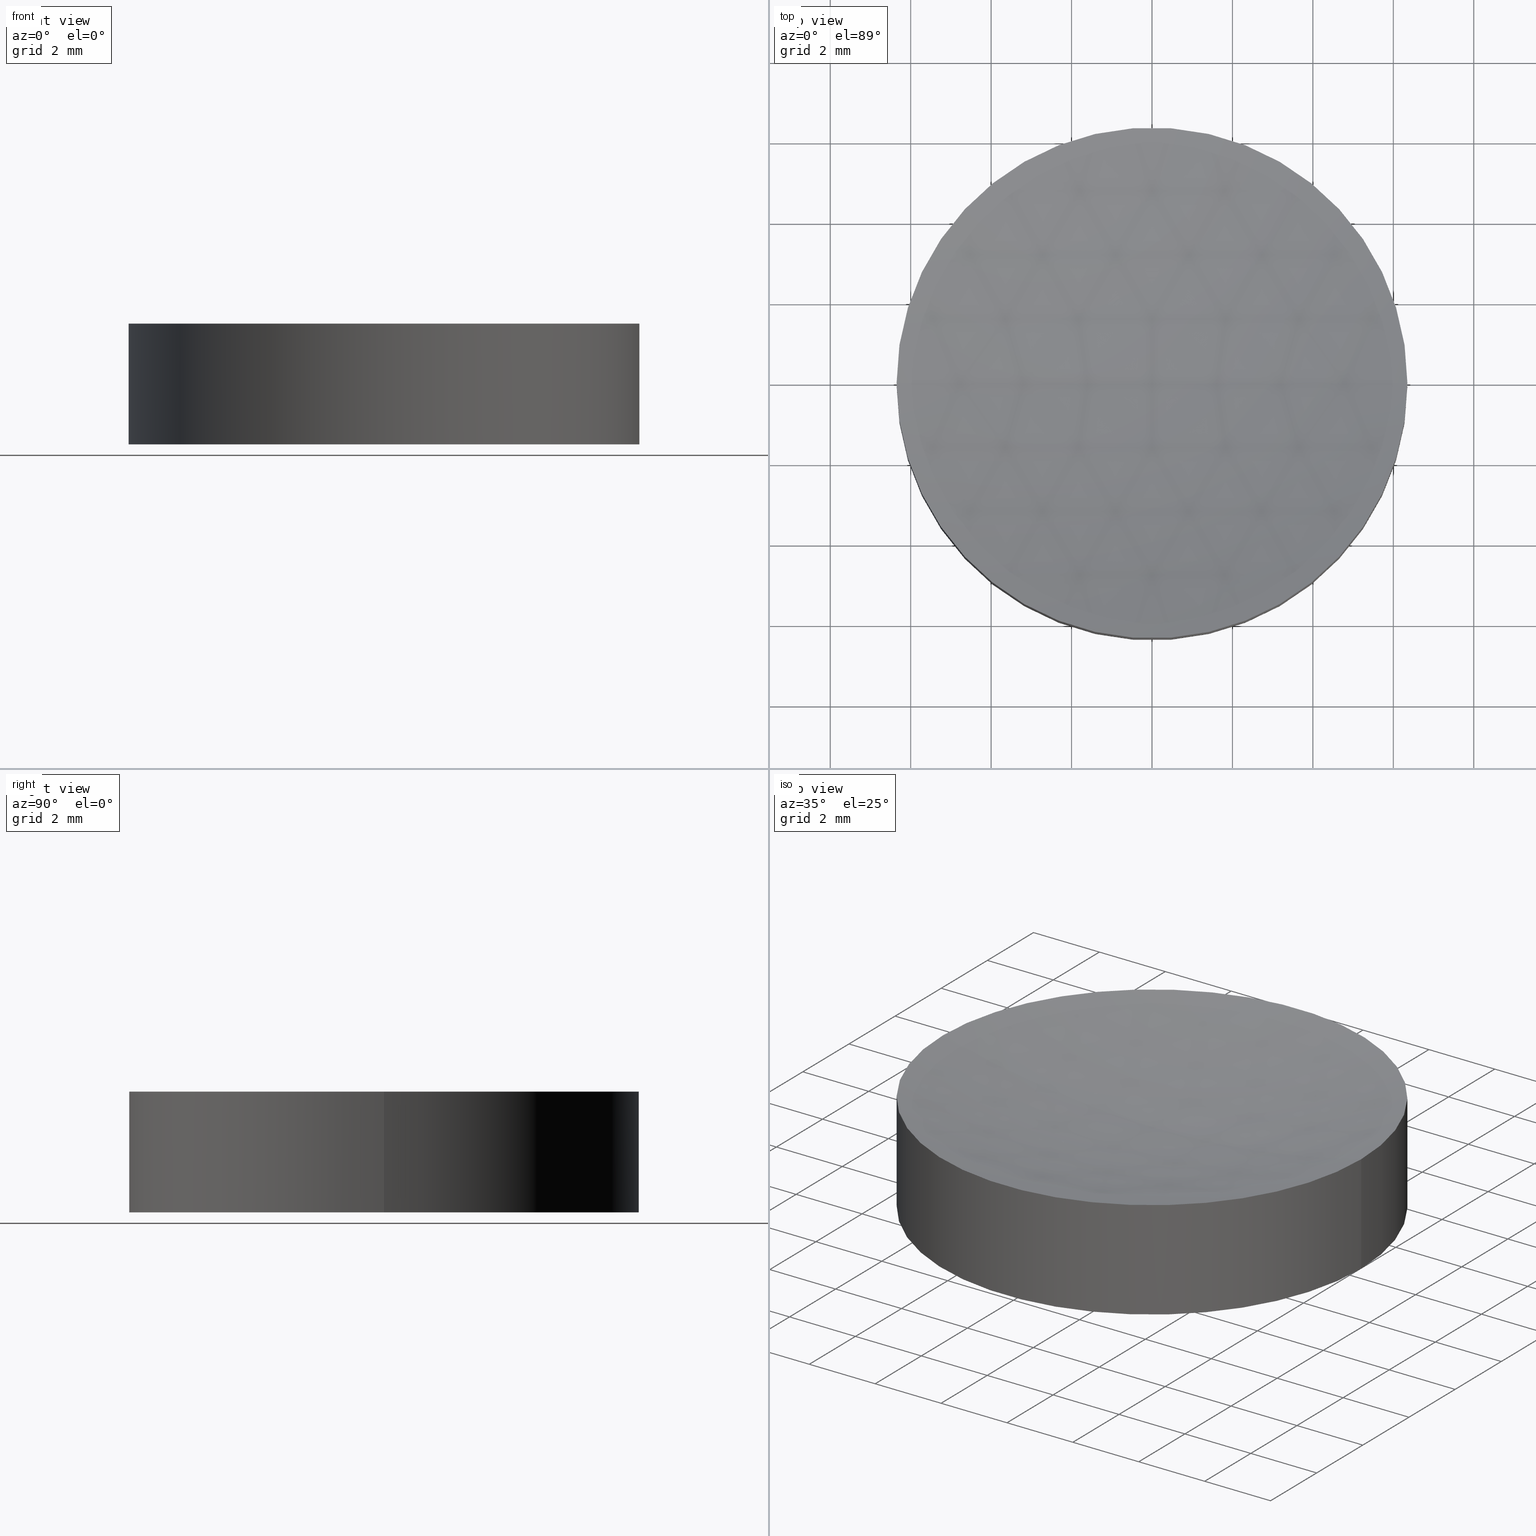
[diagram: canonical four-view strip — front | top / right | iso, engineering-drawing reading convention]
A machine part, canonical four-view strip (front | top / right | iso — engineering-drawing reading convention). The complete STEP part file that produces these views, byte-faithful:
ISO-10303-21;
HEADER;
FILE_DESCRIPTION (( 'STEP AP203' ),
    '1' );
FILE_NAME ('010-1101E_UVFS_PCV_window.STEP',
    '2021-02-25T08:28:55',
    ( '' ),
    ( '' ),
    'SwSTEP 2.0',
    'SolidWorks 2019',
    '' );
FILE_SCHEMA (( 'CONFIG_CONTROL_DESIGN' ));
ENDSEC;

DATA;
#1 = LOCAL_TIME ( 10, 28, 55.00000000000000000, #41 ) ;
#2 = DIRECTION ( 'NONE',  ( -0.000000000000000000, -0.000000000000000000, -1.000000000000000000 ) ) ;
#3 = APPLICATION_CONTEXT ( 'configuration controlled 3d designs of mechanical parts and assemblies' ) ;
#4 = EDGE_CURVE ( 'NONE', #176, #29, #129, .T. ) ;
#5 = LINE ( 'NONE', #35, #58 ) ;
#6 = CARTESIAN_POINT ( 'NONE',  ( 6.350000000000015632, 7.776507174585711884E-16, 2.999999999999999112 ) ) ;
#7 = ADVANCED_FACE ( 'NONE', ( #31 ), #102, .T. ) ;
#8 = ORIENTED_EDGE ( 'NONE', *, *, #179, .F. ) ;
#9 = PERSON_AND_ORGANIZATION ( #146, #50 ) ;
#10 = COORDINATED_UNIVERSAL_TIME_OFFSET ( 2, 0, .AHEAD. ) ;
#11 = CALENDAR_DATE ( 2021, 25, 2 ) ;
#12 = CC_DESIGN_PERSON_AND_ORGANIZATION_ASSIGNMENT ( #136, #159, ( #47 ) ) ;
#13 = CIRCLE ( 'NONE', #183, 6.350000000000011191 ) ;
#14 = APPLICATION_CONTEXT ( 'configuration controlled 3d designs of mechanical parts and assemblies' ) ;
#15 = CLOSED_SHELL ( 'NONE', ( #17, #132, #7, #67, #32 ) ) ;
#16 = FACE_OUTER_BOUND ( 'NONE', #39, .T. ) ;
#17 = ADVANCED_FACE ( 'NONE', ( #163 ), #184, .F. ) ;
#18 = AXIS2_PLACEMENT_3D ( 'NONE', #113, #52, #187 ) ;
#19 = AXIS2_PLACEMENT_3D ( 'NONE', #72, #89, #44 ) ;
#20 = DIRECTION ( 'NONE',  ( 0.000000000000000000, 0.000000000000000000, 1.000000000000000000 ) ) ;
#21 = CARTESIAN_POINT ( 'NONE',  ( -6.349999999999999645, 0.000000000000000000, 0.000000000000000000 ) ) ;
#22 = COORDINATED_UNIVERSAL_TIME_OFFSET ( 2, 0, .AHEAD. ) ;
#23 = AXIS2_PLACEMENT_3D ( 'NONE', #104, #145, #84 ) ;
#24 = MANIFOLD_SOLID_BREP ( 'Cut-Revolve1', #15 ) ;
#25 = SHAPE_DEFINITION_REPRESENTATION ( #142, #105 ) ;
#26 = CALENDAR_DATE ( 2021, 25, 2 ) ;
#27 = PERSON_AND_ORGANIZATION ( #146, #50 ) ;
#28 = APPROVAL_ROLE ( '' ) ;
#29 = VERTEX_POINT ( 'NONE', #64 ) ;
#30 = EDGE_CURVE ( 'NONE', #77, #29, #111, .T. ) ;
#31 = FACE_OUTER_BOUND ( 'NONE', #48, .T. ) ;
#32 = ADVANCED_FACE ( 'NONE', ( #16 ), #40, .F. ) ;
#33 = CARTESIAN_POINT ( 'NONE',  ( 0.000000000000000000, 0.000000000000000000, 3.000000000000000000 ) ) ;
#34 = LOCAL_TIME ( 10, 28, 55.00000000000000000, #22 ) ;
#35 = CARTESIAN_POINT ( 'NONE',  ( -6.349999999999999645, 0.000000000000000000, 3.000000000000000000 ) ) ;
#36 = DIRECTION ( 'NONE',  ( -1.000000000000000000, 0.000000000000000000, 0.000000000000000000 ) ) ;
#37 = PRODUCT_DEFINITION_FORMATION_WITH_SPECIFIED_SOURCE ( 'ANY', '', #150, .NOT_KNOWN. ) ;
#38 = CARTESIAN_POINT ( 'NONE',  ( 0.000000000000000000, 0.000000000000000000, 3.000000000000000000 ) ) ;
#39 = EDGE_LOOP ( 'NONE', ( #155, #43, #114 ) ) ;
#40 = SPHERICAL_SURFACE ( 'NONE', #23, 25.00000000000000000 ) ;
#41 = COORDINATED_UNIVERSAL_TIME_OFFSET ( 2, 0, .AHEAD. ) ;
#42 = APPROVAL_DATE_TIME ( #94, #172 ) ;
#43 = ORIENTED_EDGE ( 'NONE', *, *, #51, .F. ) ;
#44 = DIRECTION ( 'NONE',  ( 1.000000000000000000, 0.000000000000000000, 0.000000000000000000 ) ) ;
#45 = ORIENTED_EDGE ( 'NONE', *, *, #100, .T. ) ;
#46 = PERSON_AND_ORGANIZATION_ROLE ( 'design_owner' ) ;
#47 = PRODUCT_DEFINITION ( 'UNKNOWN', '', #37, #99 ) ;
#48 = EDGE_LOOP ( 'NONE', ( #195, #80, #134, #49 ) ) ;
#49 = ORIENTED_EDGE ( 'NONE', *, *, #179, .T. ) ;
#50 = ORGANIZATION ( 'UNSPECIFIED', 'UNSPECIFIED', '' ) ;
#51 = EDGE_CURVE ( 'NONE', #176, #77, #186, .T. ) ;
#52 = DIRECTION ( 'NONE',  ( 0.000000000000000000, 1.000000000000000000, -0.000000000000000000 ) ) ;
#53 = AXIS2_PLACEMENT_3D ( 'NONE', #161, #143, #173 ) ;
#54 = DIRECTION ( 'NONE',  ( 1.000000000000000000, 0.000000000000000000, 0.000000000000000000 ) ) ;
#55 = FACE_OUTER_BOUND ( 'NONE', #141, .T. ) ;
#56 = PERSON_AND_ORGANIZATION ( #146, #50 ) ;
#57 = PERSON_AND_ORGANIZATION_ROLE ( 'creator' ) ;
#58 = VECTOR ( 'NONE', #166, 1000.000000000000000 ) ;
#59 = PERSON_AND_ORGANIZATION_ROLE ( 'design_supplier' ) ;
#60 = DATE_AND_TIME ( #26, #96 ) ;
#61 = AXIS2_PLACEMENT_3D ( 'NONE', #191, #118, #135 ) ;
#62 = EDGE_LOOP ( 'NONE', ( #182, #144, #95 ) ) ;
#63 = DIRECTION ( 'NONE',  ( -1.000000000000000000, 0.000000000000000000, 0.000000000000000000 ) ) ;
#64 = CARTESIAN_POINT ( 'NONE',  ( 5.867617188876208666E-15, 0.000000000000000000, 2.180105458827096054 ) ) ;
#65 = PRODUCT_RELATED_PRODUCT_CATEGORY ( 'detail', '', ( #150 ) ) ;
#66 = LOCAL_TIME ( 10, 28, 55.00000000000000000, #73 ) ;
#67 = ADVANCED_FACE ( 'NONE', ( #55 ), #83, .F. ) ;
#68 = DIRECTION ( 'NONE',  ( 1.000000000000000000, 0.000000000000000000, 0.000000000000000000 ) ) ;
#69 = CC_DESIGN_DATE_AND_TIME_ASSIGNMENT ( #169, #75, ( #188 ) ) ;
#70 = CC_DESIGN_APPROVAL ( #172, ( #188 ) ) ;
#71 = CARTESIAN_POINT ( 'NONE',  ( 6.349999999999999645, 7.776507174585692163E-16, 3.000000000000000000 ) ) ;
#72 = CARTESIAN_POINT ( 'NONE',  ( 0.000000000000000000, 0.000000000000000000, 0.000000000000000000 ) ) ;
#73 = COORDINATED_UNIVERSAL_TIME_OFFSET ( 2, 0, .AHEAD. ) ;
#74 = APPROVAL_PERSON_ORGANIZATION ( #9, #172, #121 ) ;
#75 = DATE_TIME_ROLE ( 'classification_date' ) ;
#76 = CALENDAR_DATE ( 2021, 25, 2 ) ;
#77 = VERTEX_POINT ( 'NONE', #115 ) ;
#78 = VECTOR ( 'NONE', #2, 1000.000000000000000 ) ;
#79 = UNCERTAINTY_MEASURE_WITH_UNIT (LENGTH_MEASURE( 1.000000000000000082E-05 ), #112, 'distance_accuracy_value', 'NONE');
#80 = ORIENTED_EDGE ( 'NONE', *, *, #51, .T. ) ;
#81 = EDGE_CURVE ( 'NONE', #93, #156, #138, .T. ) ;
#82 = CC_DESIGN_DATE_AND_TIME_ASSIGNMENT ( #60, #180, ( #47 ) ) ;
#83 = PLANE ( 'NONE',  #152 ) ;
#84 = DIRECTION ( 'NONE',  ( 1.000000000000000000, 0.000000000000000000, 0.000000000000000000 ) ) ;
#85 = CARTESIAN_POINT ( 'NONE',  ( 0.000000000000000000, 0.000000000000000000, 0.000000000000000000 ) ) ;
#86 = CARTESIAN_POINT ( 'NONE',  ( 6.349999999999999645, 7.776507174585692163E-16, 0.000000000000000000 ) ) ;
#87 = AXIS2_PLACEMENT_3D ( 'NONE', #85, #103, #148 ) ;
#88 = PERSON_AND_ORGANIZATION ( #146, #50 ) ;
#89 = DIRECTION ( 'NONE',  ( 0.000000000000000000, 0.000000000000000000, 1.000000000000000000 ) ) ;
#90 = DATE_AND_TIME ( #11, #168 ) ;
#91 = AXIS2_PLACEMENT_3D ( 'NONE', #97, #128, #190 ) ;
#92 = PERSON_AND_ORGANIZATION ( #146, #50 ) ;
#93 = VERTEX_POINT ( 'NONE', #86 ) ;
#94 = DATE_AND_TIME ( #140, #66 ) ;
#95 = ORIENTED_EDGE ( 'NONE', *, *, #4, .F. ) ;
#96 = LOCAL_TIME ( 10, 28, 55.00000000000000000, #10 ) ;
#97 = CARTESIAN_POINT ( 'NONE',  ( 4.336808689942017736E-15, 0.000000000000000000, 27.18010545882709650 ) ) ;
#98 = DIRECTION ( 'NONE',  ( -0.000000000000000000, -0.000000000000000000, -1.000000000000000000 ) ) ;
#99 = DESIGN_CONTEXT ( 'detailed design', #3, 'design' ) ;
#100 = EDGE_CURVE ( 'NONE', #176, #93, #193, .T. ) ;
#101 = CARTESIAN_POINT ( 'NONE',  ( 4.336808689942017736E-15, 0.000000000000000000, 2.999999999999999112 ) ) ;
#102 = CYLINDRICAL_SURFACE ( 'NONE', #127, 6.349999999999999645 ) ;
#103 = DIRECTION ( 'NONE',  ( 0.000000000000000000, 0.000000000000000000, 1.000000000000000000 ) ) ;
#104 = CARTESIAN_POINT ( 'NONE',  ( 4.336808689942017736E-15, 0.000000000000000000, 27.18010545882709650 ) ) ;
#105 = ADVANCED_BREP_SHAPE_REPRESENTATION ( '010-1101E_UVFS_PCV_window', ( #24, #19 ), #162 ) ;
#106 = CARTESIAN_POINT ( 'NONE',  ( 4.336808689942017736E-15, 0.000000000000000000, 2.999999999999999112 ) ) ;
#107 = APPROVAL_DATE_TIME ( #153, #130 ) ;
#108 = ORIENTED_EDGE ( 'NONE', *, *, #81, .T. ) ;
#109 = APPROVAL_PERSON_ORGANIZATION ( #92, #119, #158 ) ;
#110 = APPROVAL_STATUS ( 'not_yet_approved' ) ;
#111 = CIRCLE ( 'NONE', #91, 25.00000000000000000 ) ;
#112 =( LENGTH_UNIT ( ) NAMED_UNIT ( * ) SI_UNIT ( .MILLI., .METRE. ) );
#113 = CARTESIAN_POINT ( 'NONE',  ( 4.336808689942017736E-15, 0.000000000000000000, 27.18010545882709650 ) ) ;
#114 = ORIENTED_EDGE ( 'NONE', *, *, #4, .T. ) ;
#115 = CARTESIAN_POINT ( 'NONE',  ( -6.350000000000006750, 0.000000000000000000, 2.999999999999999112 ) ) ;
#116 = CYLINDRICAL_SURFACE ( 'NONE', #198, 6.349999999999999645 ) ;
#117 = EDGE_CURVE ( 'NONE', #77, #176, #13, .T. ) ;
#118 = DIRECTION ( 'NONE',  ( 0.000000000000000000, 0.000000000000000000, 1.000000000000000000 ) ) ;
#119 = APPROVAL ( #125, 'UNSPECIFIED' ) ;
#120 = APPROVAL_DATE_TIME ( #90, #119 ) ;
#121 = APPROVAL_ROLE ( '' ) ;
#122 = ORIENTED_EDGE ( 'NONE', *, *, #117, .T. ) ;
#123 = SECURITY_CLASSIFICATION_LEVEL ( 'unclassified' ) ;
#124 = CC_DESIGN_PERSON_AND_ORGANIZATION_ASSIGNMENT ( #154, #57, ( #37 ) ) ;
#125 = APPROVAL_STATUS ( 'not_yet_approved' ) ;
#126 = EDGE_LOOP ( 'NONE', ( #122, #45, #108, #197 ) ) ;
#127 = AXIS2_PLACEMENT_3D ( 'NONE', #33, #98, #63 ) ;
#128 = DIRECTION ( 'NONE',  ( 1.224646799147353207E-16, -1.000000000000000000, 0.000000000000000000 ) ) ;
#129 = CIRCLE ( 'NONE', #18, 25.00000000000000000 ) ;
#130 = APPROVAL ( #110, 'UNSPECIFIED' ) ;
#131 = CARTESIAN_POINT ( 'NONE',  ( 0.000000000000000000, 0.000000000000000000, 0.000000000000000000 ) ) ;
#132 = ADVANCED_FACE ( 'NONE', ( #164 ), #116, .T. ) ;
#133 = CC_DESIGN_APPROVAL ( #130, ( #37 ) ) ;
#134 = ORIENTED_EDGE ( 'NONE', *, *, #147, .T. ) ;
#135 = DIRECTION ( 'NONE',  ( 1.000000000000000000, 0.000000000000000000, 0.000000000000000000 ) ) ;
#136 = PERSON_AND_ORGANIZATION ( #146, #50 ) ;
#137 = CALENDAR_DATE ( 2021, 25, 2 ) ;
#138 = CIRCLE ( 'NONE', #87, 6.349999999999999645 ) ;
#139 = PERSON_AND_ORGANIZATION ( #146, #50 ) ;
#140 = CALENDAR_DATE ( 2021, 25, 2 ) ;
#141 = EDGE_LOOP ( 'NONE', ( #8, #201 ) ) ;
#142 = PRODUCT_DEFINITION_SHAPE ( 'NONE', 'NONE',  #47 ) ;
#143 = DIRECTION ( 'NONE',  ( 0.000000000000000000, -1.000000000000000000, -0.000000000000000000 ) ) ;
#144 = ORIENTED_EDGE ( 'NONE', *, *, #30, .T. ) ;
#145 = DIRECTION ( 'NONE',  ( 0.000000000000000000, -1.000000000000000000, -0.000000000000000000 ) ) ;
#146 = PERSON ( 'UNSPECIFIED', 'UNSPECIFIED', 'UNSPECIFIED', ('UNSPECIFIED'), ('UNSPECIFIED'), ('UNSPECIFIED') ) ;
#147 = EDGE_CURVE ( 'NONE', #77, #156, #5, .T. ) ;
#148 = DIRECTION ( 'NONE',  ( 1.000000000000000000, 0.000000000000000000, 0.000000000000000000 ) ) ;
#149 = CIRCLE ( 'NONE', #61, 6.349999999999999645 ) ;
#150 = PRODUCT ( '010-1101E_UVFS_PCV_window', '010-1101E_UVFS_PCV_window', '', ( #181 ) ) ;
#151 = DIRECTION ( 'NONE',  ( -0.000000000000000000, -0.000000000000000000, -1.000000000000000000 ) ) ;
#152 = AXIS2_PLACEMENT_3D ( 'NONE', #131, #20, #200 ) ;
#153 = DATE_AND_TIME ( #76, #1 ) ;
#154 = PERSON_AND_ORGANIZATION ( #146, #50 ) ;
#155 = ORIENTED_EDGE ( 'NONE', *, *, #30, .F. ) ;
#156 = VERTEX_POINT ( 'NONE', #21 ) ;
#157 = APPROVAL_PERSON_ORGANIZATION ( #139, #130, #28 ) ;
#158 = APPROVAL_ROLE ( '' ) ;
#159 = PERSON_AND_ORGANIZATION_ROLE ( 'creator' ) ;
#160 = CC_DESIGN_PERSON_AND_ORGANIZATION_ASSIGNMENT ( #56, #46, ( #150 ) ) ;
#161 = CARTESIAN_POINT ( 'NONE',  ( 4.336808689942017736E-15, 0.000000000000000000, 27.18010545882709650 ) ) ;
#162 =( GEOMETRIC_REPRESENTATION_CONTEXT ( 3 ) GLOBAL_UNCERTAINTY_ASSIGNED_CONTEXT ( ( #79 ) ) GLOBAL_UNIT_ASSIGNED_CONTEXT ( ( #112, #175, #192 ) ) REPRESENTATION_CONTEXT ( 'NONE', 'WORKASPACE' ) );
#163 = FACE_OUTER_BOUND ( 'NONE', #62, .T. ) ;
#164 = FACE_OUTER_BOUND ( 'NONE', #126, .T. ) ;
#165 = CC_DESIGN_APPROVAL ( #119, ( #47 ) ) ;
#166 = DIRECTION ( 'NONE',  ( -0.000000000000000000, -0.000000000000000000, -1.000000000000000000 ) ) ;
#167 = APPLICATION_PROTOCOL_DEFINITION ( 'international standard', 'config_control_design', 1994, #3 ) ;
#168 = LOCAL_TIME ( 10, 28, 55.00000000000000000, #170 ) ;
#169 = DATE_AND_TIME ( #137, #34 ) ;
#170 = COORDINATED_UNIVERSAL_TIME_OFFSET ( 2, 0, .AHEAD. ) ;
#171 = APPROVAL_STATUS ( 'not_yet_approved' ) ;
#172 = APPROVAL ( #171, 'UNSPECIFIED' ) ;
#173 = DIRECTION ( 'NONE',  ( 1.000000000000000000, 0.000000000000000000, 0.000000000000000000 ) ) ;
#174 = CC_DESIGN_PERSON_AND_ORGANIZATION_ASSIGNMENT ( #88, #59, ( #37 ) ) ;
#175 =( NAMED_UNIT ( * ) PLANE_ANGLE_UNIT ( ) SI_UNIT ( $, .RADIAN. ) );
#176 = VERTEX_POINT ( 'NONE', #6 ) ;
#177 = DIRECTION ( 'NONE',  ( -0.000000000000000000, -0.000000000000000000, -1.000000000000000000 ) ) ;
#178 = CC_DESIGN_SECURITY_CLASSIFICATION ( #188, ( #37 ) ) ;
#179 = EDGE_CURVE ( 'NONE', #156, #93, #149, .T. ) ;
#180 = DATE_TIME_ROLE ( 'creation_date' ) ;
#181 = MECHANICAL_CONTEXT ( 'NONE', #14, 'mechanical' ) ;
#182 = ORIENTED_EDGE ( 'NONE', *, *, #117, .F. ) ;
#183 = AXIS2_PLACEMENT_3D ( 'NONE', #106, #177, #54 ) ;
#184 = SPHERICAL_SURFACE ( 'NONE', #53, 25.00000000000000000 ) ;
#185 = CC_DESIGN_PERSON_AND_ORGANIZATION_ASSIGNMENT ( #27, #194, ( #188 ) ) ;
#186 = CIRCLE ( 'NONE', #199, 6.350000000000011191 ) ;
#187 = DIRECTION ( 'NONE',  ( 0.000000000000000000, 0.000000000000000000, 1.000000000000000000 ) ) ;
#188 = SECURITY_CLASSIFICATION ( '', '', #123 ) ;
#189 = DIRECTION ( 'NONE',  ( -0.000000000000000000, -0.000000000000000000, -1.000000000000000000 ) ) ;
#190 = DIRECTION ( 'NONE',  ( 1.000000000000000000, 1.224646799147353207E-16, 0.000000000000000000 ) ) ;
#191 = CARTESIAN_POINT ( 'NONE',  ( 0.000000000000000000, 0.000000000000000000, 0.000000000000000000 ) ) ;
#192 =( NAMED_UNIT ( * ) SI_UNIT ( $, .STERADIAN. ) SOLID_ANGLE_UNIT ( ) );
#193 = LINE ( 'NONE', #71, #78 ) ;
#194 = PERSON_AND_ORGANIZATION_ROLE ( 'classification_officer' ) ;
#195 = ORIENTED_EDGE ( 'NONE', *, *, #100, .F. ) ;
#196 = APPLICATION_PROTOCOL_DEFINITION ( 'international standard', 'config_control_design', 1994, #14 ) ;
#197 = ORIENTED_EDGE ( 'NONE', *, *, #147, .F. ) ;
#198 = AXIS2_PLACEMENT_3D ( 'NONE', #38, #151, #36 ) ;
#199 = AXIS2_PLACEMENT_3D ( 'NONE', #101, #189, #68 ) ;
#200 = DIRECTION ( 'NONE',  ( 1.000000000000000000, 0.000000000000000000, -0.000000000000000000 ) ) ;
#201 = ORIENTED_EDGE ( 'NONE', *, *, #81, .F. ) ;
ENDSEC;
END-ISO-10303-21;
